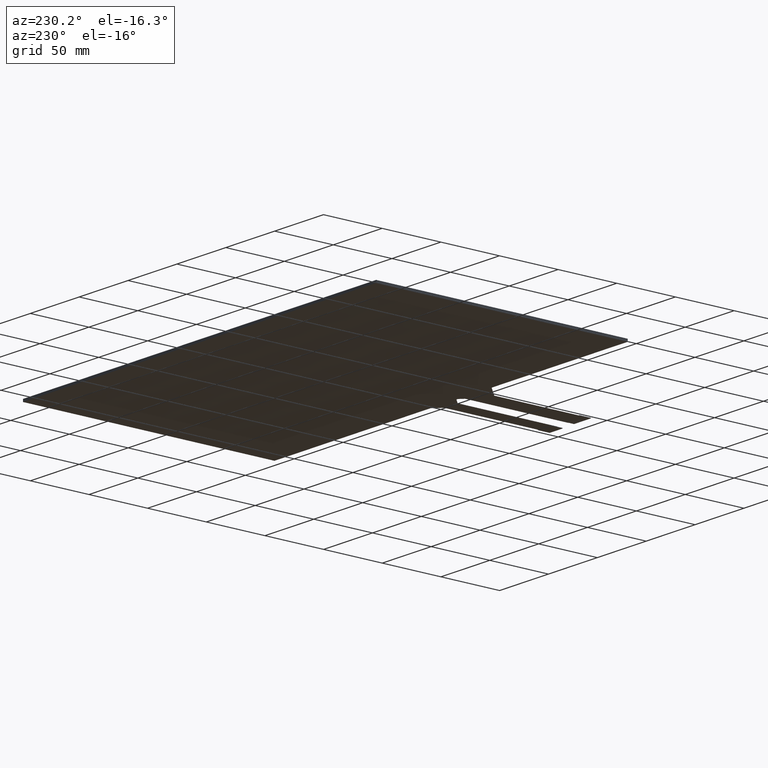
[diagram: clean part render]
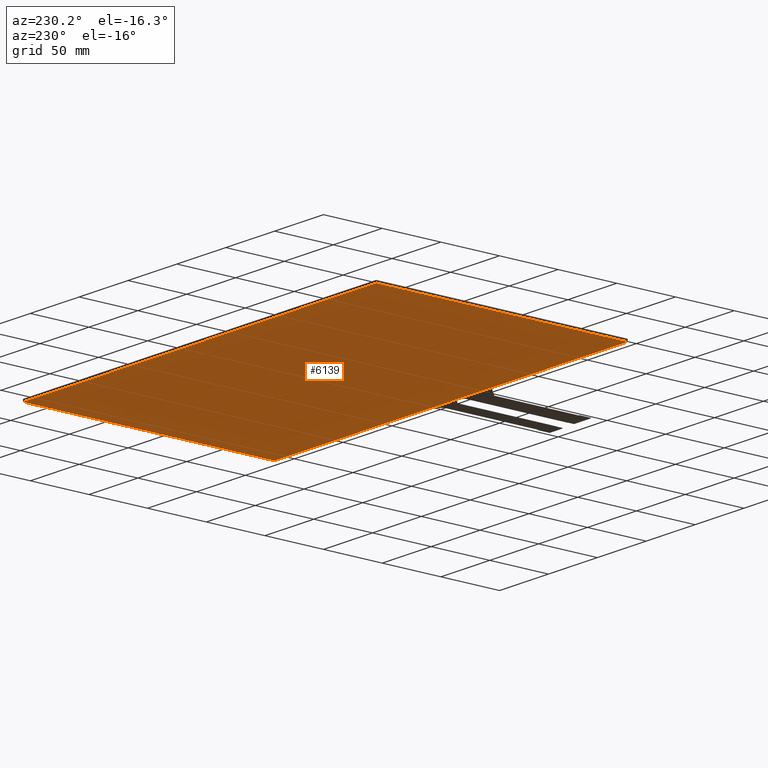
[diagram: same view with one face highlighted and labeled with its STEP entity id]
A machine part, auxiliary view. The second image highlights one B-rep face of the part: STEP entity #6139.
In plain terms, the highlighted planar face has unit normal (0, 0, -1).
Its self-contained STEP definition (entity closure, byte-faithful):
#369=PLANE('',#6477);
#663=FACE_OUTER_BOUND('',#961,.T.);
#961=EDGE_LOOP('',(#5830,#5831,#5832,#5833));
#1795=LINE('',#9677,#2635);
#1797=LINE('',#9681,#2637);
#1799=LINE('',#9685,#2639);
#1801=LINE('',#9688,#2641);
#2635=VECTOR('',#7939,10.);
#2637=VECTOR('',#7943,10.);
#2639=VECTOR('',#7947,10.);
#2641=VECTOR('',#7951,10.);
#3238=VERTEX_POINT('',#9674);
#3239=VERTEX_POINT('',#9676);
#3240=VERTEX_POINT('',#9680);
#3241=VERTEX_POINT('',#9684);
#4099=EDGE_CURVE('',#3239,#3238,#1795,.T.);
#4101=EDGE_CURVE('',#3240,#3239,#1797,.T.);
#4103=EDGE_CURVE('',#3241,#3240,#1799,.T.);
#4105=EDGE_CURVE('',#3238,#3241,#1801,.T.);
#5830=ORIENTED_EDGE('',*,*,#4105,.T.);
#5831=ORIENTED_EDGE('',*,*,#4103,.T.);
#5832=ORIENTED_EDGE('',*,*,#4101,.T.);
#5833=ORIENTED_EDGE('',*,*,#4099,.T.);
#6139=ADVANCED_FACE('',(#663),#369,.T.);
#6477=AXIS2_PLACEMENT_3D('',#9690,#7954,#7955);
#7939=DIRECTION('',(-4.97114787145592E-16,1.,0.));
#7943=DIRECTION('',(-1.,-9.83041969784311E-17,0.));
#7947=DIRECTION('',(1.65704929048531E-16,-1.,0.));
#7951=DIRECTION('',(1.,0.,0.));
#7954=DIRECTION('center_axis',(0.,0.,-1.));
#7955=DIRECTION('ref_axis',(-1.,0.,0.));
#9674=CARTESIAN_POINT('',(-180.7,105.685,-2.1));
#9676=CARTESIAN_POINT('',(-180.7,-108.715,-2.1));
#9677=CARTESIAN_POINT('',(-180.7,105.685,-2.1));
#9680=CARTESIAN_POINT('',(180.7,-108.715,-2.1));
#9681=CARTESIAN_POINT('',(-180.7,-108.715,-2.1));
#9684=CARTESIAN_POINT('',(180.7,105.685,-2.1));
#9685=CARTESIAN_POINT('',(180.7,-108.715,-2.1));
#9688=CARTESIAN_POINT('',(180.7,105.685,-2.1));
#9690=CARTESIAN_POINT('Origin',(0.,-1.51499999999997,-2.1));